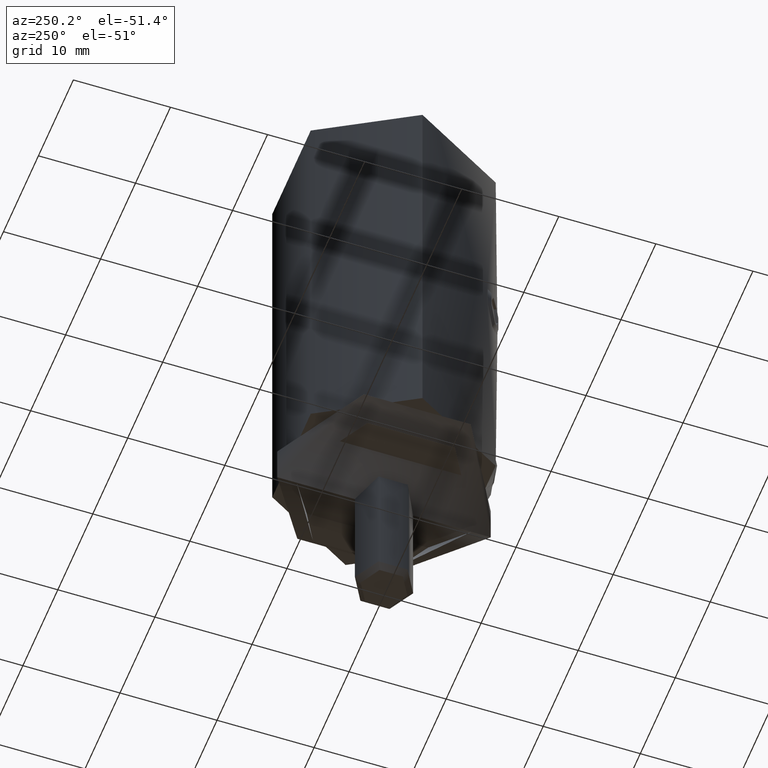
[diagram: clean part render]
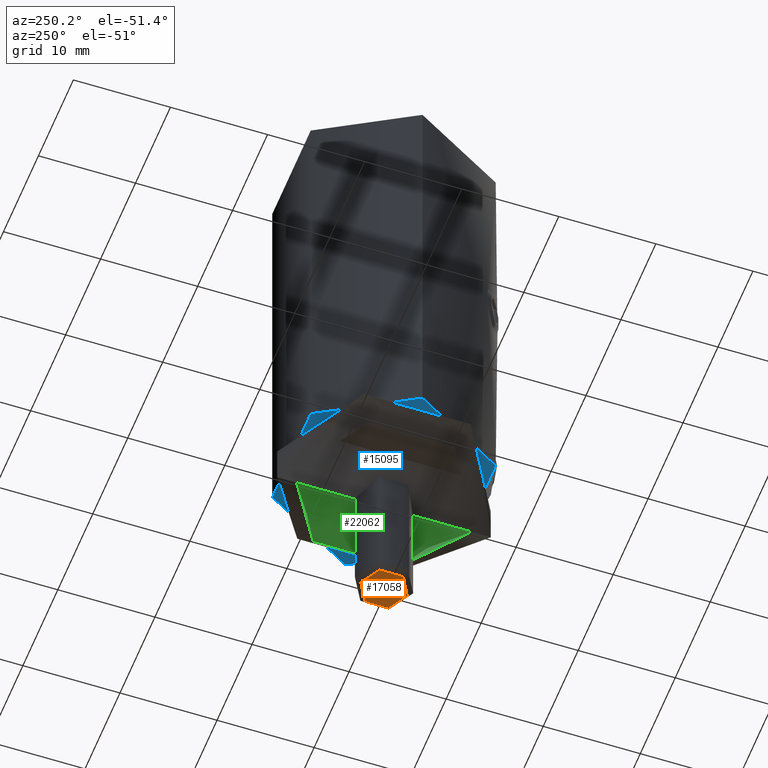
[diagram: same view with three faces highlighted in distinct colors, each labeled with its STEP entity id]
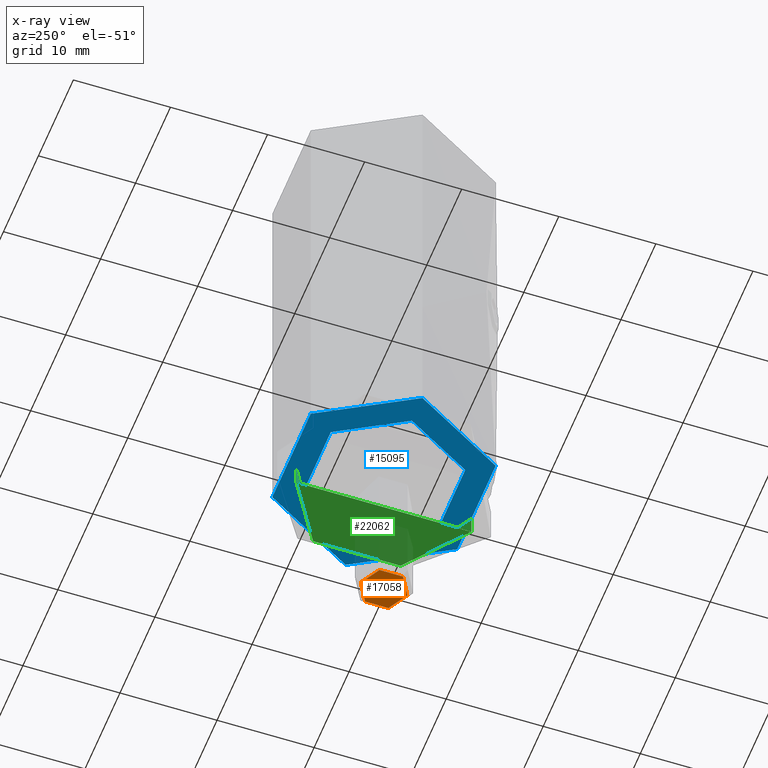
[diagram: x-ray of the same camera — body ghosted, the three highlighted faces saturated]
A machine part, auxiliary view with three faces highlighted in distinct colors.
The next image is the same camera in x-ray (body ghosted, the three faces saturated) — at least one of them is partly hidden behind the body in this view.
Their STEP definitions:

[orange] entity #17058 — the highlighted planar face has unit normal (-0, 0, -1).
#1574 = CIRCLE ( 'NONE', #5343, 2.399999999999985256 ) ;
#4499 = CARTESIAN_POINT ( 'NONE',  ( 9.758171241389040264E-30, 2.399999999999982148, 25.00000000000000355 ) ) ;
#4754 = DIRECTION ( 'NONE',  ( 7.181444546696669244E-33, -1.000000000000000000, -1.224646799147353207E-16 ) ) ;
#5343 = AXIS2_PLACEMENT_3D ( 'NONE', #5605, #12712, #16437 ) ;
#5418 = DIRECTION ( 'NONE',  ( 5.669937756276022351E-31, -1.224646799147353207E-16, 1.000000000000000000 ) ) ;
#5605 = CARTESIAN_POINT ( 'NONE',  ( 1.579262554397533400E-29, -3.061616997868383437E-15, 25.00000000000000355 ) ) ;
#5679 = AXIS2_PLACEMENT_3D ( 'NONE', #11603, #9935, #4754 ) ;
#7427 = AXIS2_PLACEMENT_3D ( 'NONE', #16087, #5418, #21411 ) ;
#8285 = CARTESIAN_POINT ( 'NONE',  ( 3.306546357697939029E-16, -2.399999999999987921, 25.00000000000000355 ) ) ;
#8848 = CIRCLE ( 'NONE', #7427, 2.399999999999985256 ) ;
#9169 = VERTEX_POINT ( 'NONE', #4499 ) ;
#9935 = DIRECTION ( 'NONE',  ( 5.669937756276022351E-31, -1.224646799147353207E-16, 1.000000000000000000 ) ) ;
#11603 = CARTESIAN_POINT ( 'NONE',  ( 1.579262554397533400E-29, -3.061616997868383437E-15, 25.00000000000000355 ) ) ;
#12672 = EDGE_CURVE ( 'NONE', #13410, #9169, #8848, .T. ) ;
#12712 = DIRECTION ( 'NONE',  ( 5.669937756276022351E-31, -1.224646799147353207E-16, 1.000000000000000000 ) ) ;
#13410 = VERTEX_POINT ( 'NONE', #8285 ) ;
#13782 = FACE_OUTER_BOUND ( 'NONE', #20364, .T. ) ;
#14546 = EDGE_CURVE ( 'NONE', #9169, #13410, #1574, .T. ) ;
#16087 = CARTESIAN_POINT ( 'NONE',  ( 1.579262554397533400E-29, -3.061616997868383437E-15, 25.00000000000000355 ) ) ;
#16437 = DIRECTION ( 'NONE',  ( 7.181444546696759562E-33, -1.000000000000000000, 0.000000000000000000 ) ) ;
#17058 = ADVANCED_FACE ( 'NONE', ( #13782 ), #20810, .T. ) ;
#17912 = ORIENTED_EDGE ( 'NONE', *, *, #12672, .T. ) ;
#19914 = ORIENTED_EDGE ( 'NONE', *, *, #14546, .T. ) ;
#20364 = EDGE_LOOP ( 'NONE', ( #19914, #17912 ) ) ;
#20810 = PLANE ( 'NONE',  #5679 ) ;
#21411 = DIRECTION ( 'NONE',  ( 7.181444546696759562E-33, -1.000000000000000000, 0.000000000000000000 ) ) ;

[blue] entity #15095 — the highlighted planar face has unit normal (0, 0, -1).
#32 = AXIS2_PLACEMENT_3D ( 'NONE', #5327, #176, #10744 ) ;
#129 = DIRECTION ( 'NONE',  ( -1.000000000000000000, 0.000000000000000000, 0.000000000000000000 ) ) ;
#176 = DIRECTION ( 'NONE',  ( -0.000000000000000000, -0.000000000000000000, 1.000000000000000000 ) ) ;
#942 = EDGE_LOOP ( 'NONE', ( #11754, #5960 ) ) ;
#2972 = AXIS2_PLACEMENT_3D ( 'NONE', #13762, #8622, #6759 ) ;
#3710 = PLANE ( 'NONE',  #17595 ) ;
#5327 = CARTESIAN_POINT ( 'NONE',  ( 0.000000000000000000, 0.000000000000000000, 0.000000000000000000 ) ) ;
#5495 = DIRECTION ( 'NONE',  ( -0.000000000000000000, -0.000000000000000000, 1.000000000000000000 ) ) ;
#5960 = ORIENTED_EDGE ( 'NONE', *, *, #17442, .T. ) ;
#6192 = CARTESIAN_POINT ( 'NONE',  ( 8.000000000000000000, 9.797174393178825657E-16, 0.000000000000000000 ) ) ;
#6308 = CARTESIAN_POINT ( 'NONE',  ( 11.00000000000000000, 0.000000000000000000, 0.000000000000000000 ) ) ;
#6348 = EDGE_CURVE ( 'NONE', #17886, #19252, #18450, .T. ) ;
#6589 = VERTEX_POINT ( 'NONE', #22292 ) ;
#6759 = DIRECTION ( 'NONE',  ( -1.000000000000000000, 0.000000000000000000, 0.000000000000000000 ) ) ;
#6952 = AXIS2_PLACEMENT_3D ( 'NONE', #14146, #5495, #129 ) ;
#8622 = DIRECTION ( 'NONE',  ( -0.000000000000000000, -0.000000000000000000, 1.000000000000000000 ) ) ;
#10723 = FACE_OUTER_BOUND ( 'NONE', #17472, .T. ) ;
#10744 = DIRECTION ( 'NONE',  ( 1.000000000000000000, 0.000000000000000000, 0.000000000000000000 ) ) ;
#10890 = EDGE_CURVE ( 'NONE', #6589, #20451, #13648, .T. ) ;
#11754 = ORIENTED_EDGE ( 'NONE', *, *, #10890, .T. ) ;
#12460 = DIRECTION ( 'NONE',  ( -1.000000000000000000, 0.000000000000000000, -0.000000000000000000 ) ) ;
#13648 = CIRCLE ( 'NONE', #6952, 8.000000000000000000 ) ;
#13762 = CARTESIAN_POINT ( 'NONE',  ( 0.000000000000000000, 0.000000000000000000, 0.000000000000000000 ) ) ;
#13920 = ORIENTED_EDGE ( 'NONE', *, *, #6348, .F. ) ;
#14146 = CARTESIAN_POINT ( 'NONE',  ( 0.000000000000000000, 0.000000000000000000, 0.000000000000000000 ) ) ;
#14483 = DIRECTION ( 'NONE',  ( 1.000000000000000000, 0.000000000000000000, 0.000000000000000000 ) ) ;
#14951 = ORIENTED_EDGE ( 'NONE', *, *, #22822, .F. ) ;
#15095 = ADVANCED_FACE ( 'NONE', ( #21942, #10723 ), #3710, .T. ) ;
#17146 = CIRCLE ( 'NONE', #2972, 8.000000000000000000 ) ;
#17442 = EDGE_CURVE ( 'NONE', #20451, #6589, #17146, .T. ) ;
#17472 = EDGE_LOOP ( 'NONE', ( #14951, #13920 ) ) ;
#17595 = AXIS2_PLACEMENT_3D ( 'NONE', #21271, #17747, #12460 ) ;
#17747 = DIRECTION ( 'NONE',  ( 0.000000000000000000, 0.000000000000000000, -1.000000000000000000 ) ) ;
#17886 = VERTEX_POINT ( 'NONE', #18342 ) ;
#18074 = CARTESIAN_POINT ( 'NONE',  ( 0.000000000000000000, 0.000000000000000000, 0.000000000000000000 ) ) ;
#18342 = CARTESIAN_POINT ( 'NONE',  ( -10.99999999999999822, 1.347111479062088405E-15, 0.000000000000000000 ) ) ;
#18450 = CIRCLE ( 'NONE', #19627, 11.00000000000000000 ) ;
#19252 = VERTEX_POINT ( 'NONE', #6308 ) ;
#19431 = CIRCLE ( 'NONE', #32, 11.00000000000000000 ) ;
#19627 = AXIS2_PLACEMENT_3D ( 'NONE', #18074, #19729, #14483 ) ;
#19729 = DIRECTION ( 'NONE',  ( -0.000000000000000000, -0.000000000000000000, 1.000000000000000000 ) ) ;
#20451 = VERTEX_POINT ( 'NONE', #6192 ) ;
#21271 = CARTESIAN_POINT ( 'NONE',  ( 0.000000000000000000, 9.629649721936179265E-32, 0.000000000000000000 ) ) ;
#21942 = FACE_BOUND ( 'NONE', #942, .T. ) ;
#22292 = CARTESIAN_POINT ( 'NONE',  ( -8.000000000000000000, 0.000000000000000000, 0.000000000000000000 ) ) ;
#22822 = EDGE_CURVE ( 'NONE', #19252, #17886, #19431, .T. ) ;

[green] entity #22062 — the highlighted cylindrical surface (partial cylindrical patch) has radius 9 mm, axis along (0, 0, -1).
#616 = CARTESIAN_POINT ( 'NONE',  ( 0.000000000000000000, 9.000000000000000000, 1.999999999999999556 ) ) ;
#1027 = LINE ( 'NONE', #16936, #15768 ) ;
#1542 = CARTESIAN_POINT ( 'NONE',  ( 1.491460967790994463, 8.880471131629562365, -0.05053315862707704470 ) ) ;
#1683 = CARTESIAN_POINT ( 'NONE',  ( 0.6030836316957842724, 8.984747230574685162, -0.006488074780198420551 ) ) ;
#1757 = CARTESIAN_POINT ( 'NONE',  ( 7.787120209274806193, -4.521893375319822717, -1.481395017640133149 ) ) ;
#2266 = VERTEX_POINT ( 'NONE', #2487 ) ;
#2487 = CARTESIAN_POINT ( 'NONE',  ( -2.400543471972580931E-16, 9.000000000000000000, 0.000000000000000000 ) ) ;
#2909 = EDGE_CURVE ( 'NONE', #18756, #2266, #3817, .T. ) ;
#3003 = ORIENTED_EDGE ( 'NONE', *, *, #15485, .F. ) ;
#3105 = ORIENTED_EDGE ( 'NONE', *, *, #10063, .F. ) ;
#3377 = CARTESIAN_POINT ( 'NONE',  ( 8.704730878304367536, -2.362008123287461903, -1.869084275814926643 ) ) ;
#3457 = CARTESIAN_POINT ( 'NONE',  ( 1.198054577579932278, 8.924912206474560961, -0.03178508186405704788 ) ) ;
#3540 = CARTESIAN_POINT ( 'NONE',  ( 8.706415660134123158, 2.357563003050728856, -1.869838397457706858 ) ) ;
#3817 = LINE ( 'NONE', #616, #17505 ) ;
#3844 = DIRECTION ( 'NONE',  ( -0.000000000000000000, 1.224646799147353700E-16, -1.000000000000000000 ) ) ;
#4000 = DIRECTION ( 'NONE',  ( 0.000000000000000000, 1.000000000000000000, 1.445602896647339163E-16 ) ) ;
#4218 = VERTEX_POINT ( 'NONE', #11722 ) ;
#4657 = CARTESIAN_POINT ( 'NONE',  ( 4.535962555106800131, 7.795054722870341735, -0.4849895838474957976 ) ) ;
#4728 = CARTESIAN_POINT ( 'NONE',  ( 0.3009189647580838844, 9.000000000000003553, 6.939105662144041953E-15 ) ) ;
#4763 = DIRECTION ( 'NONE',  ( 0.000000000000000000, 1.000000000000000000, 1.445602896647339163E-16 ) ) ;
#5132 = CARTESIAN_POINT ( 'NONE',  ( 5.262191614882391733, -7.307129957256241148, -0.6619565563388757345 ) ) ;
#5202 = CARTESIAN_POINT ( 'NONE',  ( 8.532837768163393122, 2.921585112813853247, -1.791469826741916238 ) ) ;
#5265 = CARTESIAN_POINT ( 'NONE',  ( 5.945509795412032616, -6.762829383680998951, -0.8494344560948389189 ) ) ;
#5989 = ORIENTED_EDGE ( 'NONE', *, *, #9448, .F. ) ;
#6481 = AXIS2_PLACEMENT_3D ( 'NONE', #14700, #3844, #4000 ) ;
#6536 = CARTESIAN_POINT ( 'NONE',  ( 7.149034228485851017, 5.498294302312308979, -1.238742662092881197 ) ) ;
#6992 = CARTESIAN_POINT ( 'NONE',  ( 1.486471490104403825, -8.881374637244256576, -0.05015444881014049366 ) ) ;
#7070 = CARTESIAN_POINT ( 'NONE',  ( 2.923398892352812695, 8.532671750191315851, -0.1951843288773500440 ) ) ;
#8095 = ORIENTED_EDGE ( 'NONE', *, *, #2909, .T. ) ;
#8246 = CARTESIAN_POINT ( 'NONE',  ( 8.193363873119134055, -3.735633294600278820, -1.646896040208383427 ) ) ;
#8317 = CARTESIAN_POINT ( 'NONE',  ( 8.925628558626204523, -1.192827234166816464, -1.970485342432204634 ) ) ;
#8656 = CARTESIAN_POINT ( 'NONE',  ( 0.000000000000000000, 9.000000000000000000, 1.999999999999999556 ) ) ;
#8767 = CARTESIAN_POINT ( 'NONE',  ( 8.880688484592262455, -1.490378324176697911, -1.949609545792502896 ) ) ;
#8913 = VERTEX_POINT ( 'NONE', #12921 ) ;
#9240 = EDGE_LOOP ( 'NONE', ( #3003, #5989, #8095, #3105 ) ) ;
#9430 = CIRCLE ( 'NONE', #10066, 9.000000000000000000 ) ;
#9448 = EDGE_CURVE ( 'NONE', #18756, #8913, #9430, .T. ) ;
#9685 = CARTESIAN_POINT ( 'NONE',  ( 0.2964334490521093879, -9.000000000000000000, -3.047059855589466335E-15 ) ) ;
#9711 = DIRECTION ( 'NONE',  ( -0.000000000000000000, 1.224646799147353700E-16, -1.000000000000000000 ) ) ;
#9969 = B_SPLINE_CURVE_WITH_KNOTS ( 'NONE', 3,
 ( #13537, #9685, #21186, #10456, #6992, #12445, #15788, #10076, #22966, #19456, #15853, #5132, #18908, #5265, #20708, #10610, #12292, #14067, #1757, #17586, #8246, #17728, #3377, #8767, #8317, #10536, #14214, #20791, #21253, #3540, #5202, #22590, #12223, #6536, #17655, #15406, #23040, #22517, #9995, #4657, #12367, #7070, #11824, #1542, #3457, #1683, #4728, #15933 ),
 .UNSPECIFIED., .F., .F.,
 ( 4, 2, 2, 2, 2, 2, 2, 2, 2, 2, 2, 2, 2, 2, 2, 2, 2, 2, 2, 2, 2, 2, 2, 4 ),
 ( 0.02848027258681561091, 0.02936949791033579421, 0.03025872323385598098, 0.03203717388089635104, 0.03292639920441653434, 0.03381562452793671764, 0.03470484985145690787, 0.03559407517497709117, 0.03737252582201745776, 0.03826175114553764800, 0.03915097646905783824, 0.04092942711609820483, 0.04181865243961838813, 0.04270787776313857143, 0.04448632841017894496, 0.04626477905721931155, 0.04804322970425968509, 0.04982168035130005168, 0.05071090567482024192, 0.05160013099834042521, 0.05337858164538079875, 0.05515703229242116534, 0.05604625761594135558, 0.05693548293946153888 ),
 .UNSPECIFIED. ) ;
#9995 = CARTESIAN_POINT ( 'NONE',  ( 5.259692949055500222, 7.308904753116186370, -0.6613222603714047354 ) ) ;
#10063 = EDGE_CURVE ( 'NONE', #4218, #2266, #9969, .T. ) ;
#10066 = AXIS2_PLACEMENT_3D ( 'NONE', #16834, #9711, #4763 ) ;
#10076 = CARTESIAN_POINT ( 'NONE',  ( 3.742138319472860353, -8.190460172740545275, -0.3310585601990093663 ) ) ;
#10456 = CARTESIAN_POINT ( 'NONE',  ( 1.188250110291134698, -8.926220304075664913, -0.03123314677761045502 ) ) ;
#10536 = CARTESIAN_POINT ( 'NONE',  ( 8.985179175337009383, -0.5968560665887953087, -1.998238770381804086 ) ) ;
#10610 = CARTESIAN_POINT ( 'NONE',  ( 6.782893369670293993, -5.944265957912704401, -1.109705084575135059 ) ) ;
#11329 = FACE_OUTER_BOUND ( 'NONE', #9240, .T. ) ;
#11722 = CARTESIAN_POINT ( 'NONE',  ( 1.102158473109589528E-15, -9.000000000000000000, -1.861935857233098374E-15 ) ) ;
#11824 = CARTESIAN_POINT ( 'NONE',  ( 2.359948464335839269, 8.705144260624257058, -0.1237513485727981116 ) ) ;
#12223 = CARTESIAN_POINT ( 'NONE',  ( 7.798681730541693113, 4.529955176446842202, -1.483482858883815370 ) ) ;
#12292 = CARTESIAN_POINT ( 'NONE',  ( 7.150489299978476154, -5.496221675087341829, -1.239282207627341981 ) ) ;
#12367 = CARTESIAN_POINT ( 'NONE',  ( 4.019336509877204477, 8.074508177015530919, -0.3770925065201941040 ) ) ;
#12445 = CARTESIAN_POINT ( 'NONE',  ( 2.360921398637982005, -8.705153755182525543, -0.1237501564019045236 ) ) ;
#12921 = CARTESIAN_POINT ( 'NONE',  ( 1.102182119232617714E-15, -9.000000000000000000, 1.999999999999997113 ) ) ;
#13537 = CARTESIAN_POINT ( 'NONE',  ( 1.102158473109589528E-15, -9.000000000000000000, -1.861935857233098374E-15 ) ) ;
#14067 = CARTESIAN_POINT ( 'NONE',  ( 7.636236501007309663, -4.772041448204880965, -1.422289563636395027 ) ) ;
#14214 = CARTESIAN_POINT ( 'NONE',  ( 8.999905445151094696, -0.2995324990175534663, -2.005164705339575804 ) ) ;
#14700 = CARTESIAN_POINT ( 'NONE',  ( 0.000000000000000000, -2.449293598294700991E-16, 1.999999999999998224 ) ) ;
#15406 = CARTESIAN_POINT ( 'NONE',  ( 6.161153869097453217, 6.567007868193577735, -0.9138700709468956518 ) ) ;
#15485 = EDGE_CURVE ( 'NONE', #8913, #4218, #1027, .T. ) ;
#15768 = VECTOR ( 'NONE', #22325, 1000.000000000000000 ) ;
#15788 = CARTESIAN_POINT ( 'NONE',  ( 2.924552147243136169, -8.532053850704444997, -0.1954229079065455954 ) ) ;
#15853 = CARTESIAN_POINT ( 'NONE',  ( 4.778794297280152925, -7.632033403245351622, -0.5441288213318646871 ) ) ;
#15933 = CARTESIAN_POINT ( 'NONE',  ( -2.400543471972580931E-16, 9.000000000000000000, 0.000000000000000000 ) ) ;
#16834 = CARTESIAN_POINT ( 'NONE',  ( 0.000000000000000000, -2.449293598294701484E-16, 1.999999999999998224 ) ) ;
#16936 = CARTESIAN_POINT ( 'NONE',  ( 1.102182119232617714E-15, -9.000000000000000000, 1.999999999999997113 ) ) ;
#17505 = VECTOR ( 'NONE', #20259, 1000.000000000000000 ) ;
#17586 = CARTESIAN_POINT ( 'NONE',  ( 8.066124459004573310, -4.003048471266071218, -1.593871881070151098 ) ) ;
#17655 = CARTESIAN_POINT ( 'NONE',  ( 6.780744227032809768, 5.946691944771037797, -1.108980968700565395 ) ) ;
#17728 = CARTESIAN_POINT ( 'NONE',  ( 8.532378343486360706, -2.922873668129471803, -1.791268359766140739 ) ) ;
#18756 = VERTEX_POINT ( 'NONE', #8656 ) ;
#18908 = CARTESIAN_POINT ( 'NONE',  ( 5.495492606631186661, -7.133337858995711045, -0.7233263029714135373 ) ) ;
#19456 = CARTESIAN_POINT ( 'NONE',  ( 4.528699389792132379, -7.783145565688806222, -0.4876673288471303769 ) ) ;
#20259 = DIRECTION ( 'NONE',  ( -0.000000000000000000, 1.224646799147353700E-16, -1.000000000000000000 ) ) ;
#20570 = CYLINDRICAL_SURFACE ( 'NONE', #6481, 9.000000000000000000 ) ;
#20708 = CARTESIAN_POINT ( 'NONE',  ( 6.163233675632003639, -6.565061745348238276, -0.9145015165310408367 ) ) ;
#20791 = CARTESIAN_POINT ( 'NONE',  ( 9.000187751502096489, 0.5905009705526768071, -2.005297072345209042 ) ) ;
#21186 = CARTESIAN_POINT ( 'NONE',  ( 0.5933654931180778469, -8.985391735092926879, -0.006214453234868509181 ) ) ;
#21253 = CARTESIAN_POINT ( 'NONE',  ( 8.942269996938883025, 1.181348493133572708, -1.977808956071740232 ) ) ;
#22062 = ADVANCED_FACE ( 'NONE', ( #11329 ), #20570, .F. ) ;
#22325 = DIRECTION ( 'NONE',  ( -0.000000000000000000, 1.224646799147353700E-16, -1.000000000000000000 ) ) ;
#22517 = CARTESIAN_POINT ( 'NONE',  ( 5.492841792478553309, 7.135380700782325114, -0.7226140274287836673 ) ) ;
#22590 = CARTESIAN_POINT ( 'NONE',  ( 8.080748568436822765, 4.005806101512836115, -1.598932007725411664 ) ) ;
#22966 = CARTESIAN_POINT ( 'NONE',  ( 4.010974858901454887, -8.062168054628070735, -0.3812122465098694568 ) ) ;
#23040 = CARTESIAN_POINT ( 'NONE',  ( 5.943050040245521082, 6.764992603206122723, -0.8487149436210510434 ) ) ;